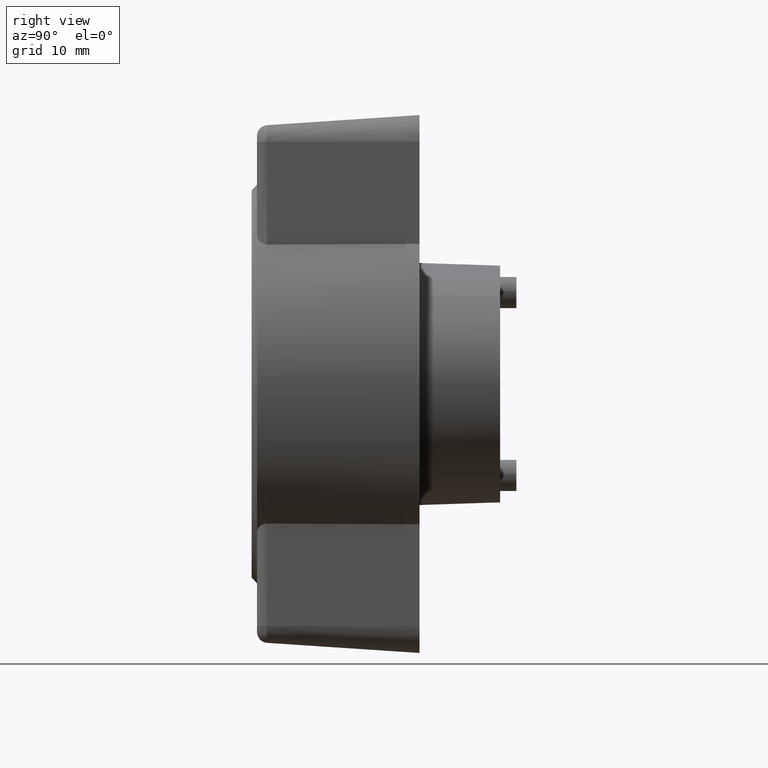
[diagram: clean part render]
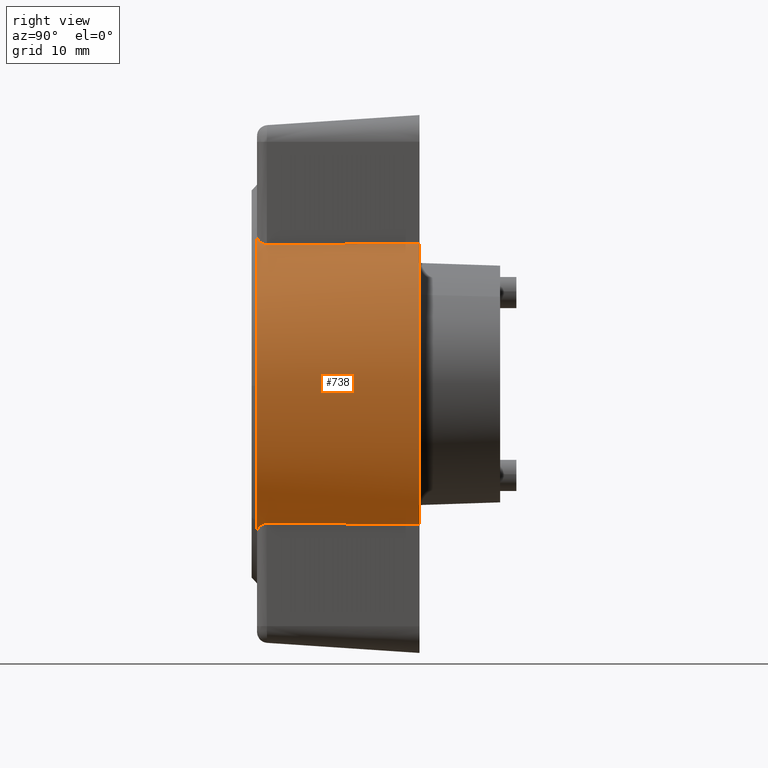
[diagram: same view with one face highlighted and labeled with its STEP entity id]
A machine part, right view. The second image highlights one B-rep face of the part: STEP entity #738.
In plain terms, the highlighted face is a freeform B-spline surface patch.
Its self-contained STEP definition (entity closure, byte-faithful):
#121=CARTESIAN_POINT('',(15.101024129502170,-18.531280006200259,0.161720030674771));
#122=VERTEX_POINT('',#121);
#128=CARTESIAN_POINT('',(15.101024129510900,0.0,-18.531985647419798));
#129=VERTEX_POINT('',#128);
#130=CARTESIAN_POINT('',(15.101024129510900,0.0,-18.531985647419798));
#131=CARTESIAN_POINT('',(15.101024129510900,-18.531985647419795,-18.531985647419795));
#132=CARTESIAN_POINT('',(15.101024129510900,-18.531985647419798,0.0));
#133=CARTESIAN_POINT('',(15.101024129510899,-18.531985647419805,0.080861554851041));
#134=CARTESIAN_POINT('',(15.101024129502163,-18.531280006200262,0.161720030674771));
#142=(BOUNDED_CURVE()B_SPLINE_CURVE(2,(#130,#131,#132,#133,#134),.UNSPECIFIED.,.F.,.U.)B_SPLINE_CURVE_WITH_KNOTS((3,2,3),(0.500000000000000,0.750000000000000,0.751539894336263),.UNSPECIFIED.)CURVE()GEOMETRIC_REPRESENTATION_ITEM()RATIONAL_B_SPLINE_CURVE((1.0,0.707106781186548,1.0,0.998195901564877,0.996414028097452))REPRESENTATION_ITEM(''));
#143=EDGE_CURVE('',#129,#122,#142,.T.);
#145=CARTESIAN_POINT('',(15.101027880630079,14.605309291225071,-11.406990121480259));
#146=VERTEX_POINT('',#145);
#147=CARTESIAN_POINT('',(15.101027880630078,14.605309291225065,-11.406990121480259));
#148=CARTESIAN_POINT('',(15.101026005070496,9.040569176027425,-18.531985573415660));
#149=CARTESIAN_POINT('',(15.101024129510900,0.0,-18.531985647419798));
#157=(BOUNDED_CURVE()B_SPLINE_CURVE(2,(#147,#148,#149),.UNSPECIFIED.,.F.,.U.)B_SPLINE_CURVE_WITH_KNOTS((3,3),(0.356517249436657,0.500000000000000),.UNSPECIFIED.)CURVE()GEOMETRIC_REPRESENTATION_ITEM()RATIONAL_B_SPLINE_CURVE((0.856755178058724,0.831899501373179,1.0))REPRESENTATION_ITEM(''));
#158=EDGE_CURVE('',#146,#129,#157,.T.);
#160=CARTESIAN_POINT('',(15.101026955833030,18.514881455720001,-0.796021357418390));
#161=VERTEX_POINT('',#160);
#175=CARTESIAN_POINT('',(15.101024129510900,0.0,18.531985647419798));
#176=VERTEX_POINT('',#175);
#177=CARTESIAN_POINT('',(15.101024129510900,0.0,18.531985647419798));
#178=CARTESIAN_POINT('',(15.101025483220562,18.531985560719793,18.531985651147338));
#179=CARTESIAN_POINT('',(15.101026896381629,18.531985470212160,7.618792E-009));
#180=CARTESIAN_POINT('',(15.101026926746048,18.531985468267429,-0.398194430758301));
#181=CARTESIAN_POINT('',(15.101026955833028,18.514881455720001,-0.796021357418390));
#189=(BOUNDED_CURVE()B_SPLINE_CURVE(2,(#177,#178,#179,#180,#181),.UNSPECIFIED.,.F.,.U.)B_SPLINE_CURVE_WITH_KNOTS((3,2,3),(0.0,0.250000000000000,0.257529741254510),.UNSPECIFIED.)CURVE()GEOMETRIC_REPRESENTATION_ITEM()RATIONAL_B_SPLINE_CURVE((1.0,0.707106781186548,1.0,0.991178359388536,0.982888116147030))REPRESENTATION_ITEM(''));
#190=EDGE_CURVE('',#176,#161,#189,.T.);
#192=CARTESIAN_POINT('',(15.101024129510890,-13.419994888653241,12.780384549171250));
#193=VERTEX_POINT('',#192);
#194=CARTESIAN_POINT('',(15.101024129510888,-13.419994888653246,12.780384549171250));
#195=CARTESIAN_POINT('',(15.101024129510909,-7.942520834529283,18.531985647419802));
#196=CARTESIAN_POINT('',(15.101024129510900,0.0,18.531985647419798));
#204=(BOUNDED_CURVE()B_SPLINE_CURVE(2,(#194,#195,#196),.UNSPECIFIED.,.F.,.U.)B_SPLINE_CURVE_WITH_KNOTS((3,3),(0.871317023849552,1.0),.UNSPECIFIED.)CURVE()GEOMETRIC_REPRESENTATION_ITEM()RATIONAL_B_SPLINE_CURVE((0.853680523245776,0.849238515635202,1.0))REPRESENTATION_ITEM(''));
#205=EDGE_CURVE('',#193,#176,#204,.T.);
#243=CARTESIAN_POINT('',(15.101024129502164,-18.531280006200262,0.161720030674771));
#244=CARTESIAN_POINT('',(15.101024129510900,-18.467411167761906,7.480364005508068));
#245=CARTESIAN_POINT('',(15.101024129510888,-13.419994888653246,12.780384549171250));
#253=(BOUNDED_CURVE()B_SPLINE_CURVE(2,(#243,#244,#245),.UNSPECIFIED.,.F.,.U.)B_SPLINE_CURVE_WITH_KNOTS((3,3),(0.751539894336263,0.871317023849553),.UNSPECIFIED.)CURVE()GEOMETRIC_REPRESENTATION_ITEM()RATIONAL_B_SPLINE_CURVE((0.996414028097453,0.857815109939267,0.853680523245776))REPRESENTATION_ITEM(''));
#254=EDGE_CURVE('',#122,#193,#253,.T.);
#446=CARTESIAN_POINT('',(15.478549732748675,14.586234650493175,-11.392097041803455));
#447=CARTESIAN_POINT('',(15.478549732748679,8.722510116595256,-18.899903696139042));
#448=CARTESIAN_POINT('',(15.478549732748681,-0.794999056282726,-18.490702874407571));
#449=CARTESIAN_POINT('',(15.478549732748672,-19.285701930690294,-17.695703818124844));
#450=CARTESIAN_POINT('',(15.478549732748681,-18.490702874407571,0.794999056282726));
#451=CARTESIAN_POINT('',(15.478549732748672,-17.695703818124844,19.285701930690294));
#452=CARTESIAN_POINT('',(15.478549732748681,0.794999056282726,18.490702874407571));
#453=CARTESIAN_POINT('',(15.478549732748672,19.285701930690294,17.695703818124844));
#454=CARTESIAN_POINT('',(15.478549732748681,18.490702874407571,-0.794999056282726));
#455=CARTESIAN_POINT('',(-0.386963743318718,15.387761861223762,-12.018103409113612));
#456=CARTESIAN_POINT('',(-0.386963743318718,9.201820190226046,-19.938471047866841));
#457=CARTESIAN_POINT('',(-0.386963743318718,-0.838684996580841,-19.506784258980019));
#458=CARTESIAN_POINT('',(-0.386963743318718,-20.345469255560868,-18.668099262399185));
#459=CARTESIAN_POINT('',(-0.386963743318718,-19.506784258980019,0.838684996580841));
#460=CARTESIAN_POINT('',(-0.386963743318718,-18.668099262399185,20.345469255560868));
#461=CARTESIAN_POINT('',(-0.386963743318718,0.838684996580841,19.506784258980019));
#462=CARTESIAN_POINT('',(-0.386963743318718,20.345469255560868,18.668099262399185));
#463=CARTESIAN_POINT('',(-0.386963743318718,19.506784258980019,-0.838684996580841));
#471=(BOUNDED_SURFACE()B_SPLINE_SURFACE(2,1,((#446,#455),(#447,#456),(#448,#457),(#449,#458),(#450,#459),(#451,#460),(#452,#461),(#453,#462),(#454,#463)),.UNSPECIFIED.,.F.,.F.,.U.)B_SPLINE_SURFACE_WITH_KNOTS((3,2,2,2,3),(2,2),(0.0,19.409854046475591,51.759610790601577,84.109367534727554,116.459124278853490),(0.0,15.898076855416530),.UNSPECIFIED.)GEOMETRIC_REPRESENTATION_ITEM()RATIONAL_B_SPLINE_SURFACE(((0.859411254969543,0.859411254969543),(0.824264068711928,0.824264068711928),(1.0,1.0),(0.707106781186548,0.707106781186548),(1.0,1.0),(0.707106781186548,0.707106781186548),(1.0,1.0),(0.707106781186548,0.707106781186548),(1.0,1.0)))REPRESENTATION_ITEM('')SURFACE());
#472=ORIENTED_EDGE('',*,*,#158,.T.);
#473=ORIENTED_EDGE('',*,*,#143,.T.);
#474=ORIENTED_EDGE('',*,*,#254,.T.);
#475=ORIENTED_EDGE('',*,*,#205,.T.);
#476=ORIENTED_EDGE('',*,*,#190,.T.);
#477=CARTESIAN_POINT('',(0.000002613138607,19.482001581067902,-0.837620356976103));
#478=VERTEX_POINT('',#477);
#479=CARTESIAN_POINT('',(15.101026955833030,18.514881455720001,-0.796021357418390));
#480=CARTESIAN_POINT('',(0.000002613138607,19.482001581067902,-0.837620356976103));
#481=QUASI_UNIFORM_CURVE('',1,(#479,#480),.UNSPECIFIED.,.F.,.U.);
#482=EDGE_CURVE('',#161,#478,#481,.T.);
#483=ORIENTED_EDGE('',*,*,#482,.T.);
#484=CARTESIAN_POINT('',(-1.775679E-015,14.500000000000000,13.038404810405300));
#485=VERTEX_POINT('',#484);
#486=CARTESIAN_POINT('',(0.000002613138607,19.482001581067895,-0.837620356976103));
#487=CARTESIAN_POINT('',(0.000001306569302,19.824030993859559,7.117553931794279));
#488=CARTESIAN_POINT('',(-1.775679E-015,14.500000000000000,13.038404810405300));
#496=(BOUNDED_CURVE()B_SPLINE_CURVE(2,(#486,#487,#488),.UNSPECIFIED.,.F.,.U.)B_SPLINE_CURVE_WITH_KNOTS((3,3),(0.471983908225164,1.0),.UNSPECIFIED.)CURVE()GEOMETRIC_REPRESENTATION_ITEM()RATIONAL_B_SPLINE_CURVE((0.872197385332480,0.864611258519273,1.0))REPRESENTATION_ITEM(''));
#497=EDGE_CURVE('',#478,#485,#496,.T.);
#498=ORIENTED_EDGE('',*,*,#497,.T.);
#499=CARTESIAN_POINT('',(14.182498803140099,13.325958708582240,12.962989763626579));
#500=VERTEX_POINT('',#499);
#501=CARTESIAN_POINT('',(-1.775679E-015,14.500000000000000,13.038404810405300));
#502=CARTESIAN_POINT('',(7.111817025503391,13.911276746020246,13.011309167238053));
#503=CARTESIAN_POINT('',(14.182498803140099,13.325958708582240,12.962989763626579));
#511=(BOUNDED_CURVE()B_SPLINE_CURVE(2,(#501,#502,#503),.UNSPECIFIED.,.F.,.U.)CURVE()GEOMETRIC_REPRESENTATION_ITEM()QUASI_UNIFORM_CURVE()RATIONAL_B_SPLINE_CURVE((1.0,0.999592122333941,1.0))REPRESENTATION_ITEM(''));
#512=EDGE_CURVE('',#485,#500,#511,.T.);
#513=ORIENTED_EDGE('',*,*,#512,.T.);
#514=CARTESIAN_POINT('',(15.100000000000000,12.329367544924621,13.835592549919960));
#515=VERTEX_POINT('',#514);
#516=CARTESIAN_POINT('',(14.182498803140099,13.325958708582240,12.962989763626579));
#517=CARTESIAN_POINT('',(14.256734744568730,13.319813383858151,12.962482452375820));
#518=CARTESIAN_POINT('',(14.328113242120690,13.305664842219869,12.970476720768071));
#519=CARTESIAN_POINT('',(14.431322887805241,13.273572586216300,12.993841472671340));
#520=CARTESIAN_POINT('',(14.465164131016170,13.260971513142650,13.003608784547399));
#521=CARTESIAN_POINT('',(14.529552371106810,13.233090708651700,13.026097574512571));
#522=CARTESIAN_POINT('',(14.560383602459421,13.217736965020460,13.038868854206120));
#523=CARTESIAN_POINT('',(14.619591626586431,13.184456914263411,13.067128475826239));
#524=CARTESIAN_POINT('',(14.648099854349971,13.166433244575529,13.082702552520040));
#525=CARTESIAN_POINT('',(14.702176671560871,13.128414284545270,13.115949782366791));
#526=CARTESIAN_POINT('',(14.727609813518340,13.108539915774470,13.133514419227680));
#527=CARTESIAN_POINT('',(14.799701719549869,13.046606800501269,13.188626611550751));
#528=CARTESIAN_POINT('',(14.842195861683960,13.002260196909649,13.228566226406031));
#529=CARTESIAN_POINT('',(14.898827563130491,12.931683349907431,13.292389863772790));
#530=CARTESIAN_POINT('',(14.916444907009650,12.907533635995780,13.314271730804579));
#531=CARTESIAN_POINT('',(14.948892603235061,12.858744219155080,13.358511000881769));
#532=CARTESIAN_POINT('',(14.963802762777000,12.834006619686280,13.380957047359130));
#533=CARTESIAN_POINT('',(15.004896202824730,12.758816141549779,13.449167560601660));
#534=CARTESIAN_POINT('',(15.027470400362301,12.707391611425390,13.495796054269050));
#535=CARTESIAN_POINT('',(15.063720013974180,12.602034508577351,13.591059456140840));
#536=CARTESIAN_POINT('',(15.077384150674670,12.547891953801230,13.639882679399360));
#537=CARTESIAN_POINT('',(15.095469327433699,12.439247085347811,13.737472594366100));
#538=CARTESIAN_POINT('',(15.100000000000000,12.384516642914150,13.786447311186560));
#539=CARTESIAN_POINT('',(15.100000000000000,12.329367544924621,13.835592549919960));
#540=B_SPLINE_CURVE_WITH_KNOTS('',3,(#516,#517,#518,#519,#520,#521,#522,#523,#524,#525,#526,#527,#528,#529,#530,#531,#532,#533,#534,#535,#536,#537,#538,#539),.UNSPECIFIED.,.F.,.U.,(4,2,2,2,2,2,2,2,2,2,2,4),(0.0,0.124999999999996,0.187499999999996,0.249999999999995,0.312499999999994,0.374999999999993,0.499999999999995,0.562499999999996,0.624999999999997,0.749999999999998,0.874999999999999,1.0),.UNSPECIFIED.);
#541=EDGE_CURVE('',#500,#515,#540,.T.);
#542=ORIENTED_EDGE('',*,*,#541,.T.);
#543=CARTESIAN_POINT('',(15.100000000000000,-12.329367544924621,13.835592549919941));
#544=VERTEX_POINT('',#543);
#545=CARTESIAN_POINT('',(15.100000000000000,12.329367544924640,13.835592549919969));
#546=CARTESIAN_POINT('',(15.100000000000005,-1.007946E-014,24.822711714449028));
#547=CARTESIAN_POINT('',(15.100000000000000,-12.329367544924640,13.835592549919960));
#555=(BOUNDED_CURVE()B_SPLINE_CURVE(2,(#545,#546,#547),.UNSPECIFIED.,.F.,.U.)CURVE()GEOMETRIC_REPRESENTATION_ITEM()QUASI_UNIFORM_CURVE()RATIONAL_B_SPLINE_CURVE((1.0,0.746576422025606,1.0))REPRESENTATION_ITEM(''));
#556=EDGE_CURVE('',#515,#544,#555,.T.);
#557=ORIENTED_EDGE('',*,*,#556,.T.);
#558=CARTESIAN_POINT('',(14.182498803140181,-13.325958708582240,12.962989763626560));
#559=VERTEX_POINT('',#558);
#560=CARTESIAN_POINT('',(15.100000000000000,-12.329367544924621,13.835592549919941));
#561=CARTESIAN_POINT('',(15.100000000000010,-12.439654603712279,13.737311997183550));
#562=CARTESIAN_POINT('',(15.082269442994960,-12.547621916169270,13.640254633144810));
#563=CARTESIAN_POINT('',(15.037013491279090,-12.679776208468590,13.520766846373631));
#564=CARTESIAN_POINT('',(15.026735204034980,-12.706149627406161,13.496888662926350));
#565=CARTESIAN_POINT('',(15.003913128449669,-12.758021172336310,13.449883889515741));
#566=CARTESIAN_POINT('',(14.991368359208099,-12.783549665823889,13.426730027099250));
#567=CARTESIAN_POINT('',(14.950219678576900,-12.858897809525370,13.358376583148001));
#568=CARTESIAN_POINT('',(14.918146088815970,-12.907492954571190,13.314267845100900));
#569=CARTESIAN_POINT('',(14.843239535119841,-13.001072097059501,13.229638420431501));
#570=CARTESIAN_POINT('',(14.800061548080960,-13.046261752906430,13.188935866616291));
#571=CARTESIAN_POINT('',(14.727916952612331,-13.108293837815630,13.133732302439039));
#572=CARTESIAN_POINT('',(14.702566151338379,-13.128109333691230,13.116219348556140));
#573=CARTESIAN_POINT('',(14.648966259343441,-13.165854519098930,13.083205820046480));
#574=CARTESIAN_POINT('',(14.620626222841910,-13.183837821697670,13.067659236495910));
#575=CARTESIAN_POINT('',(14.531177817500650,-13.234226738883770,13.024856713999620));
#576=CARTESIAN_POINT('',(14.467304456090000,-13.262267321405510,13.002105652045440));
#577=CARTESIAN_POINT('',(14.363920882949211,-13.294587419693441,12.978525465363081));
#578=CARTESIAN_POINT('',(14.328175383181760,-13.303679059382221,12.972483865647050));
#579=CARTESIAN_POINT('',(14.256142134738260,-13.317783735835210,12.964623898892681));
#580=CARTESIAN_POINT('',(14.219596772751091,-13.322887701931331,12.962736244684271));
#581=CARTESIAN_POINT('',(14.182498803140181,-13.325958708582240,12.962989763626560));
#582=B_SPLINE_CURVE_WITH_KNOTS('',3,(#560,#561,#562,#563,#564,#565,#566,#567,#568,#569,#570,#571,#572,#573,#574,#575,#576,#577,#578,#579,#580,#581),.UNSPECIFIED.,.F.,.U.,(4,2,2,2,2,2,2,2,2,2,4),(0.0,0.249999999999993,0.312499999999993,0.374999999999992,0.499999999999993,0.624999999999993,0.687499999999993,0.749999999999994,0.874999999999997,0.937499999999999,1.0),.UNSPECIFIED.);
#583=EDGE_CURVE('',#544,#559,#582,.T.);
#584=ORIENTED_EDGE('',*,*,#583,.T.);
#585=CARTESIAN_POINT('',(0.0,-14.500000000000000,13.038404810405300));
#586=VERTEX_POINT('',#585);
#587=CARTESIAN_POINT('',(14.182498803140200,-13.325958708582240,12.962989763626570));
#588=CARTESIAN_POINT('',(7.111817025479379,-13.911276746022224,13.011309167238226));
#589=CARTESIAN_POINT('',(0.0,-14.500000000000000,13.038404810405300));
#597=(BOUNDED_CURVE()B_SPLINE_CURVE(2,(#587,#588,#589),.UNSPECIFIED.,.F.,.U.)CURVE()GEOMETRIC_REPRESENTATION_ITEM()QUASI_UNIFORM_CURVE()RATIONAL_B_SPLINE_CURVE((1.0,0.999592122333767,1.0))REPRESENTATION_ITEM(''));
#598=EDGE_CURVE('',#559,#586,#597,.T.);
#599=ORIENTED_EDGE('',*,*,#598,.T.);
#600=CARTESIAN_POINT('',(0.0,-14.500000000000000,-13.038404810405300));
#601=VERTEX_POINT('',#600);
#602=CARTESIAN_POINT('',(-1.874576E-032,-14.500000000000000,13.038404810405300));
#603=CARTESIAN_POINT('',(-1.874576E-032,-26.224137931034480,5.204170E-015));
#604=CARTESIAN_POINT('',(-1.874576E-032,-14.500000000000000,-13.038404810405300));
#612=(BOUNDED_CURVE()B_SPLINE_CURVE(2,(#602,#603,#604),.UNSPECIFIED.,.F.,.U.)CURVE()GEOMETRIC_REPRESENTATION_ITEM()QUASI_UNIFORM_CURVE()RATIONAL_B_SPLINE_CURVE((1.0,0.743589743589744,1.0))REPRESENTATION_ITEM(''));
#613=EDGE_CURVE('',#586,#601,#612,.T.);
#614=ORIENTED_EDGE('',*,*,#613,.T.);
#615=CARTESIAN_POINT('',(14.182498803140220,-13.325958708582240,-12.962989763626560));
#616=VERTEX_POINT('',#615);
#617=CARTESIAN_POINT('',(0.0,-14.500000000000000,-13.038404810405300));
#618=CARTESIAN_POINT('',(7.111817025504070,-13.911276746020180,-13.011309167238059));
#619=CARTESIAN_POINT('',(14.182498803140220,-13.325958708582240,-12.962989763626560));
#627=(BOUNDED_CURVE()B_SPLINE_CURVE(2,(#617,#618,#619),.UNSPECIFIED.,.F.,.U.)CURVE()GEOMETRIC_REPRESENTATION_ITEM()QUASI_UNIFORM_CURVE()RATIONAL_B_SPLINE_CURVE((1.0,0.999592122334030,1.0))REPRESENTATION_ITEM(''));
#628=EDGE_CURVE('',#601,#616,#627,.T.);
#629=ORIENTED_EDGE('',*,*,#628,.T.);
#630=CARTESIAN_POINT('',(15.100000000000000,-12.329367544924621,-13.835592549919941));
#631=VERTEX_POINT('',#630);
#632=CARTESIAN_POINT('',(14.182498803140181,-13.325958708582240,-12.962989763626560));
#633=CARTESIAN_POINT('',(14.256734744568750,-13.319813383858151,-12.962482452375800));
#634=CARTESIAN_POINT('',(14.328113242120690,-13.305664842219869,-12.970476720768071));
#635=CARTESIAN_POINT('',(14.431322887805241,-13.273572586216311,-12.993841472671351));
#636=CARTESIAN_POINT('',(14.465164131016170,-13.260971513142650,-13.003608784547399));
#637=CARTESIAN_POINT('',(14.529552371106799,-13.233090708651700,-13.026097574512571));
#638=CARTESIAN_POINT('',(14.560383602459421,-13.217736965020460,-13.038868854206120));
#639=CARTESIAN_POINT('',(14.619591626586431,-13.184456914263400,-13.067128475826230));
#640=CARTESIAN_POINT('',(14.648099854349960,-13.166433244575540,-13.082702552520029));
#641=CARTESIAN_POINT('',(14.702176671560871,-13.128414284545279,-13.115949782366780));
#642=CARTESIAN_POINT('',(14.727609813518340,-13.108539915774470,-13.133514419227680));
#643=CARTESIAN_POINT('',(14.799701719549869,-13.046606800501280,-13.188626611550751));
#644=CARTESIAN_POINT('',(14.842195861683949,-13.002260196909649,-13.228566226406020));
#645=CARTESIAN_POINT('',(14.898827563130469,-12.931683349907431,-13.292389863772790));
#646=CARTESIAN_POINT('',(14.916444907009639,-12.907533635995790,-13.314271730804570));
#647=CARTESIAN_POINT('',(14.948892603235050,-12.858744219155090,-13.358511000881760));
#648=CARTESIAN_POINT('',(14.963802762777000,-12.834006619686290,-13.380957047359120));
#649=CARTESIAN_POINT('',(15.004896202824730,-12.758816141549790,-13.449167560601650));
#650=CARTESIAN_POINT('',(15.027470400362301,-12.707391611425390,-13.495796054269039));
#651=CARTESIAN_POINT('',(15.063720013974180,-12.602034508577360,-13.591059456140840));
#652=CARTESIAN_POINT('',(15.077384150674661,-12.547891953801241,-13.639882679399340));
#653=CARTESIAN_POINT('',(15.095469327433699,-12.439247085347819,-13.737472594366089));
#654=CARTESIAN_POINT('',(15.100000000000000,-12.384516642914150,-13.786447311186540));
#655=CARTESIAN_POINT('',(15.100000000000000,-12.329367544924621,-13.835592549919941));
#656=B_SPLINE_CURVE_WITH_KNOTS('',3,(#632,#633,#634,#635,#636,#637,#638,#639,#640,#641,#642,#643,#644,#645,#646,#647,#648,#649,#650,#651,#652,#653,#654,#655),.UNSPECIFIED.,.F.,.U.,(4,2,2,2,2,2,2,2,2,2,2,4),(0.0,0.125000000000000,0.187499999999999,0.249999999999998,0.312499999999998,0.374999999999997,0.499999999999996,0.562499999999996,0.624999999999997,0.749999999999998,0.874999999999999,1.0),.UNSPECIFIED.);
#657=EDGE_CURVE('',#616,#631,#656,.T.);
#658=ORIENTED_EDGE('',*,*,#657,.T.);
#659=CARTESIAN_POINT('',(15.100000000000000,12.329367544924621,-13.835592549919960));
#660=VERTEX_POINT('',#659);
#661=CARTESIAN_POINT('',(15.100000000000000,-12.329367544924640,-13.835592549919960));
#662=CARTESIAN_POINT('',(15.100000000000005,-1.528363E-014,-24.822711714449014));
#663=CARTESIAN_POINT('',(15.100000000000000,12.329367544924629,-13.835592549919980));
#671=(BOUNDED_CURVE()B_SPLINE_CURVE(2,(#661,#662,#663),.UNSPECIFIED.,.F.,.U.)CURVE()GEOMETRIC_REPRESENTATION_ITEM()QUASI_UNIFORM_CURVE()RATIONAL_B_SPLINE_CURVE((1.0,0.746576422025606,1.0))REPRESENTATION_ITEM(''));
#672=EDGE_CURVE('',#631,#660,#671,.T.);
#673=ORIENTED_EDGE('',*,*,#672,.T.);
#674=CARTESIAN_POINT('',(14.182498803140140,13.325958708582240,-12.962989763626579));
#675=VERTEX_POINT('',#674);
#676=CARTESIAN_POINT('',(15.100000000000000,12.329367544924621,-13.835592549919960));
#677=CARTESIAN_POINT('',(15.100000000000010,12.439654603712279,-13.737311997183570));
#678=CARTESIAN_POINT('',(15.082269442994960,12.547621916169261,-13.640254633144810));
#679=CARTESIAN_POINT('',(15.037013491279090,12.679776208468590,-13.520766846373631));
#680=CARTESIAN_POINT('',(15.026735204034980,12.706149627406161,-13.496888662926350));
#681=CARTESIAN_POINT('',(15.003913128449669,12.758021172336310,-13.449883889515760));
#682=CARTESIAN_POINT('',(14.991368359208099,12.783549665823889,-13.426730027099250));
#683=CARTESIAN_POINT('',(14.950219678576900,12.858897809525381,-13.358376583148010));
#684=CARTESIAN_POINT('',(14.918146088815959,12.907492954571190,-13.314267845100890));
#685=CARTESIAN_POINT('',(14.843239535119841,13.001072097059501,-13.229638420431490));
#686=CARTESIAN_POINT('',(14.800061548080960,13.046261752906441,-13.188935866616291));
#687=CARTESIAN_POINT('',(14.727916952612320,13.108293837815641,-13.133732302439039));
#688=CARTESIAN_POINT('',(14.702566151338360,13.128109333691240,-13.116219348556140));
#689=CARTESIAN_POINT('',(14.648966259343430,13.165854519098950,-13.083205820046480));
#690=CARTESIAN_POINT('',(14.620626222841890,13.183837821697690,-13.067659236495899));
#691=CARTESIAN_POINT('',(14.531177817500620,13.234226738883780,-13.024856713999609));
#692=CARTESIAN_POINT('',(14.467304456089970,13.262267321405520,-13.002105652045421));
#693=CARTESIAN_POINT('',(14.363920882949190,13.294587419693450,-12.978525465363070));
#694=CARTESIAN_POINT('',(14.328175383181730,13.303679059382230,-12.972483865647050));
#695=CARTESIAN_POINT('',(14.256142134738210,13.317783735835210,-12.964623898892681));
#696=CARTESIAN_POINT('',(14.219596772751091,13.322887701931331,-12.962736244684271));
#697=CARTESIAN_POINT('',(14.182498803140140,13.325958708582240,-12.962989763626579));
#698=B_SPLINE_CURVE_WITH_KNOTS('',3,(#676,#677,#678,#679,#680,#681,#682,#683,#684,#685,#686,#687,#688,#689,#690,#691,#692,#693,#694,#695,#696,#697),.UNSPECIFIED.,.F.,.U.,(4,2,2,2,2,2,2,2,2,2,4),(0.0,0.249999999999997,0.312499999999998,0.374999999999998,0.499999999999998,0.624999999999998,0.687499999999999,0.750000000000001,0.875000000000000,0.937500000000000,1.0),.UNSPECIFIED.);
#699=EDGE_CURVE('',#660,#675,#698,.T.);
#700=ORIENTED_EDGE('',*,*,#699,.T.);
#701=CARTESIAN_POINT('',(-1.775679E-015,14.500000000000000,-13.038404810405300));
#702=VERTEX_POINT('',#701);
#703=CARTESIAN_POINT('',(14.182498803140140,13.325958708582240,-12.962989763626579));
#704=CARTESIAN_POINT('',(7.111817025478668,13.911276746022287,-13.011309167238229));
#705=CARTESIAN_POINT('',(-1.775679E-015,14.500000000000000,-13.038404810405300));
#713=(BOUNDED_CURVE()B_SPLINE_CURVE(2,(#703,#704,#705),.UNSPECIFIED.,.F.,.U.)CURVE()GEOMETRIC_REPRESENTATION_ITEM()QUASI_UNIFORM_CURVE()RATIONAL_B_SPLINE_CURVE((1.0,0.999592122333602,1.0))REPRESENTATION_ITEM(''));
#714=EDGE_CURVE('',#675,#702,#713,.T.);
#715=ORIENTED_EDGE('',*,*,#714,.T.);
#716=CARTESIAN_POINT('',(0.000000322504653,15.368211329090830,-12.002836320559391));
#717=VERTEX_POINT('',#716);
#718=CARTESIAN_POINT('',(-1.874576E-032,14.499999999999989,-13.038404810405311));
#719=CARTESIAN_POINT('',(-1.874576E-032,14.952057903885246,-12.535671561848321));
#720=CARTESIAN_POINT('',(0.000000322504653,15.368211329090830,-12.002836320559391));
#728=(BOUNDED_CURVE()B_SPLINE_CURVE(2,(#718,#719,#720),.UNSPECIFIED.,.F.,.U.)B_SPLINE_CURVE_WITH_KNOTS((3,3),(0.0,0.051173309590706),.UNSPECIFIED.)CURVE()GEOMETRIC_REPRESENTATION_ITEM()RATIONAL_B_SPLINE_CURVE((1.0,0.986878638566486,0.975100204114749))REPRESENTATION_ITEM(''));
#729=EDGE_CURVE('',#702,#717,#728,.T.);
#730=ORIENTED_EDGE('',*,*,#729,.T.);
#731=CARTESIAN_POINT('',(15.101027880630079,14.605309291225071,-11.406990121480259));
#732=CARTESIAN_POINT('',(0.000000322504653,15.368211329090830,-12.002836320559391));
#733=QUASI_UNIFORM_CURVE('',1,(#731,#732),.UNSPECIFIED.,.F.,.U.);
#734=EDGE_CURVE('',#146,#717,#733,.T.);
#735=ORIENTED_EDGE('',*,*,#734,.F.);
#736=EDGE_LOOP('',(#472,#473,#474,#475,#476,#483,#498,#513,#542,#557,#584,#599,#614,#629,#658,#673,#700,#715,#730,#735));
#737=FACE_OUTER_BOUND('',#736,.T.);
#738=ADVANCED_FACE('',(#737),#471,.T.);